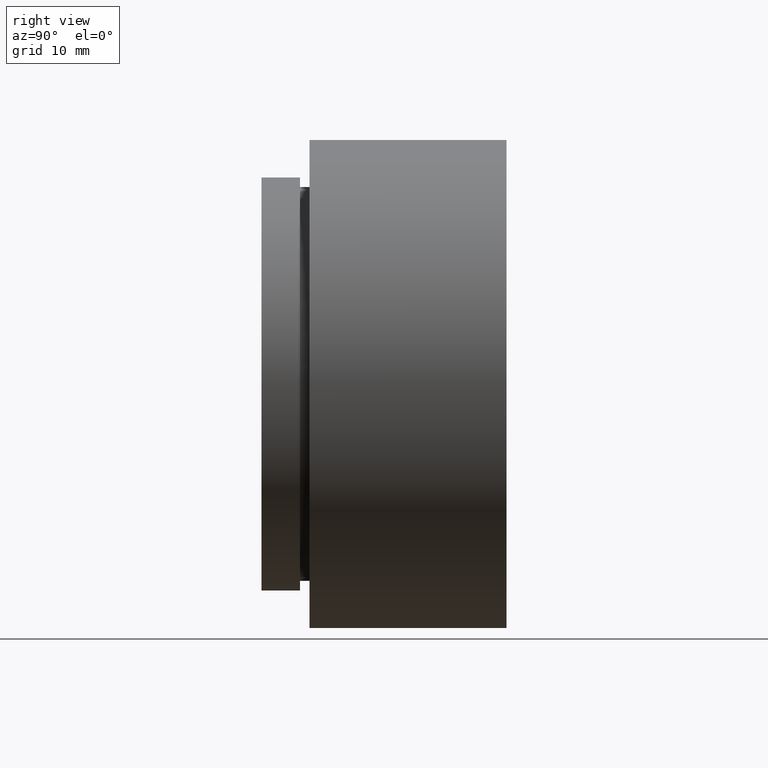
[diagram: clean part render]
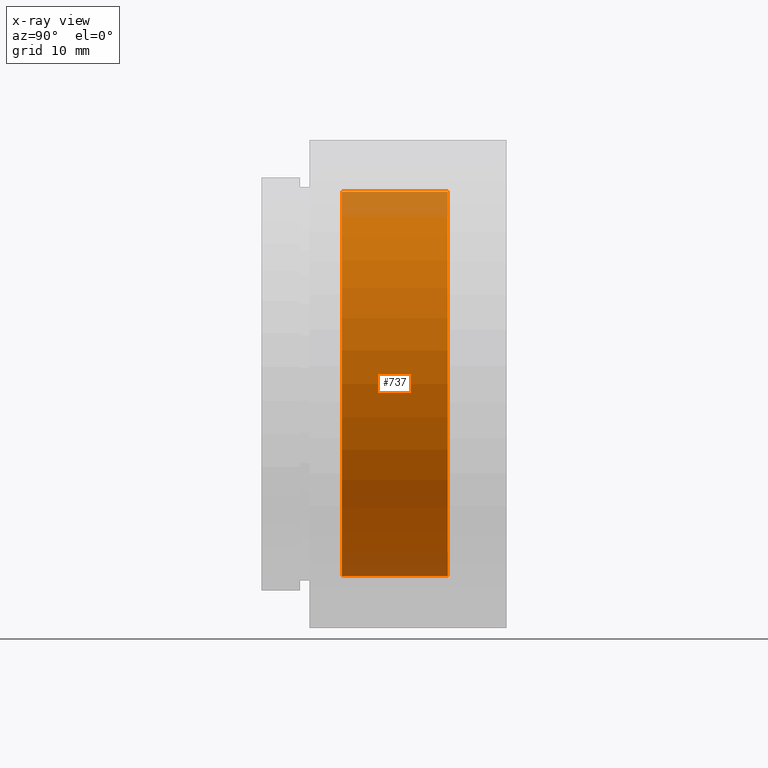
[diagram: x-ray — body ghosted, one internal face saturated and labeled with its STEP entity id]
A machine part, right view, then the same camera in x-ray: the body is ghosted and one INTERNAL B-rep face — a face not visible from any outside direction — is saturated and labeled: STEP entity #737.
In plain terms, the highlighted cylindrical surface (partial cylindrical patch) has radius 20 mm, axis along (-0, 1, 0).
Its self-contained STEP definition (entity closure, byte-faithful):
#94 = EDGE_CURVE ( 'NONE', #640, #979, #567, .T. ) ;
#109 = DIRECTION ( 'NONE',  ( -1.224646799147353207E-16, 1.000000000000000000, 0.000000000000000000 ) ) ;
#163 = DIRECTION ( 'NONE',  ( 0.000000000000000000, 0.000000000000000000, 1.000000000000000000 ) ) ;
#168 = DIRECTION ( 'NONE',  ( -1.224646799147353207E-16, 1.000000000000000000, 0.000000000000000000 ) ) ;
#231 = CARTESIAN_POINT ( 'NONE',  ( -8.905217641199637768, -10.58028184516615688, 46.65036394347453808 ) ) ;
#275 = DIRECTION ( 'NONE',  ( -1.224646799147353207E-16, 1.000000000000000000, 1.836970198721029688E-16 ) ) ;
#282 = EDGE_CURVE ( 'NONE', #952, #484, #781, .T. ) ;
#312 = CARTESIAN_POINT ( 'NONE',  ( -8.905217641199669742, 240.8695842216031338, 26.65036394347453097 ) ) ;
#406 = VECTOR ( 'NONE', #275, 1000.000000000000000 ) ;
#453 = AXIS2_PLACEMENT_3D ( 'NONE', #583, #168, #163 ) ;
#484 = VERTEX_POINT ( 'NONE', #231 ) ;
#526 = DIRECTION ( 'NONE',  ( -1.224646799147353207E-16, 1.000000000000000000, 1.843143693225354826E-16 ) ) ;
#557 = DIRECTION ( 'NONE',  ( -1.224646799147353207E-16, 1.000000000000000000, 1.836970198721029688E-16 ) ) ;
#560 = CIRCLE ( 'NONE', #809, 19.99999999999999645 ) ;
#567 = LINE ( 'NONE', #1266, #1110 ) ;
#583 = CARTESIAN_POINT ( 'NONE',  ( -8.905217641199637768, -10.58028184516615688, 26.65036394347448478 ) ) ;
#640 = VERTEX_POINT ( 'NONE', #1174 ) ;
#671 = CARTESIAN_POINT ( 'NONE',  ( -8.905217641199637768, -21.58100973922968890, 46.65036394347453808 ) ) ;
#689 = EDGE_CURVE ( 'NONE', #484, #979, #1025, .T. ) ;
#737 = ADVANCED_FACE ( 'NONE', ( #797 ), #1013, .T. ) ;
#781 = LINE ( 'NONE', #1190, #406 ) ;
#797 = FACE_OUTER_BOUND ( 'NONE', #824, .T. ) ;
#809 = AXIS2_PLACEMENT_3D ( 'NONE', #1230, #109, #901 ) ;
#817 = EDGE_CURVE ( 'NONE', #952, #640, #560, .T. ) ;
#824 = EDGE_LOOP ( 'NONE', ( #1140, #1273, #1251, #1142 ) ) ;
#901 = DIRECTION ( 'NONE',  ( 0.000000000000000000, 0.000000000000000000, 1.000000000000000000 ) ) ;
#952 = VERTEX_POINT ( 'NONE', #671 ) ;
#979 = VERTEX_POINT ( 'NONE', #1288 ) ;
#1013 = CYLINDRICAL_SURFACE ( 'NONE', #1303, 20.00000000000000355 ) ;
#1025 = CIRCLE ( 'NONE', #453, 20.00000000000000000 ) ;
#1110 = VECTOR ( 'NONE', #557, 1000.000000000000000 ) ;
#1112 = DIRECTION ( 'NONE',  ( 0.000000000000000000, 0.000000000000000000, 1.000000000000000000 ) ) ;
#1140 = ORIENTED_EDGE ( 'NONE', *, *, #817, .T. ) ;
#1142 = ORIENTED_EDGE ( 'NONE', *, *, #282, .F. ) ;
#1174 = CARTESIAN_POINT ( 'NONE',  ( -8.905217641199634215, -21.58100973922968890, 6.650363943474530970 ) ) ;
#1190 = CARTESIAN_POINT ( 'NONE',  ( -8.905217641199669742, 240.8695842216031338, 46.65036394347453808 ) ) ;
#1230 = CARTESIAN_POINT ( 'NONE',  ( -8.905217641199637768, -21.58100973922968890, 26.65036394347448123 ) ) ;
#1251 = ORIENTED_EDGE ( 'NONE', *, *, #689, .F. ) ;
#1266 = CARTESIAN_POINT ( 'NONE',  ( -8.905217641199667966, 240.8695842216031338, 6.650363943474530970 ) ) ;
#1273 = ORIENTED_EDGE ( 'NONE', *, *, #94, .T. ) ;
#1288 = CARTESIAN_POINT ( 'NONE',  ( -8.905217641199635992, -10.58028184516615688, 6.650363943474530970 ) ) ;
#1303 = AXIS2_PLACEMENT_3D ( 'NONE', #312, #526, #1112 ) ;